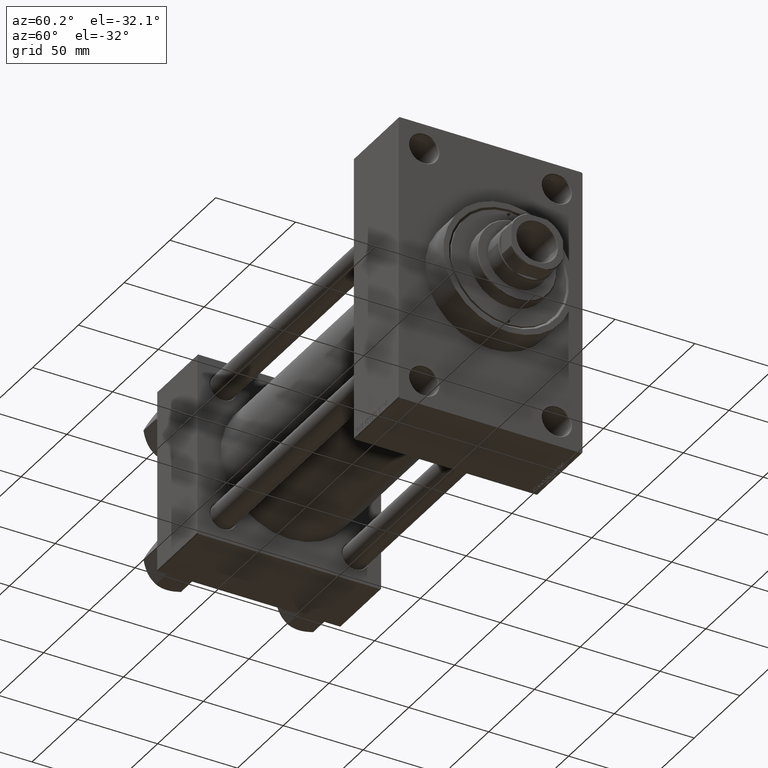
[diagram: clean part render]
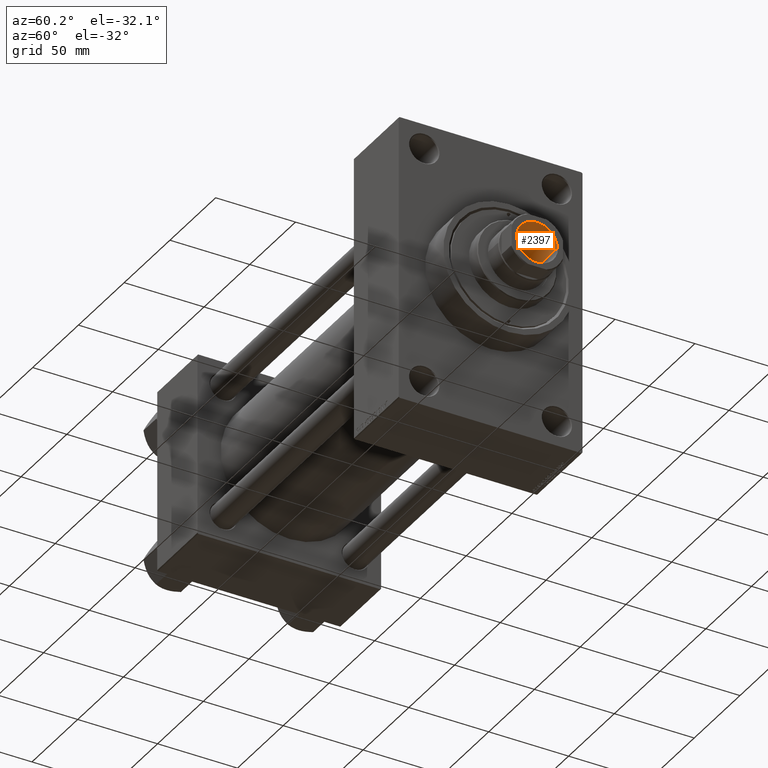
[diagram: same view with one face highlighted and labeled with its STEP entity id]
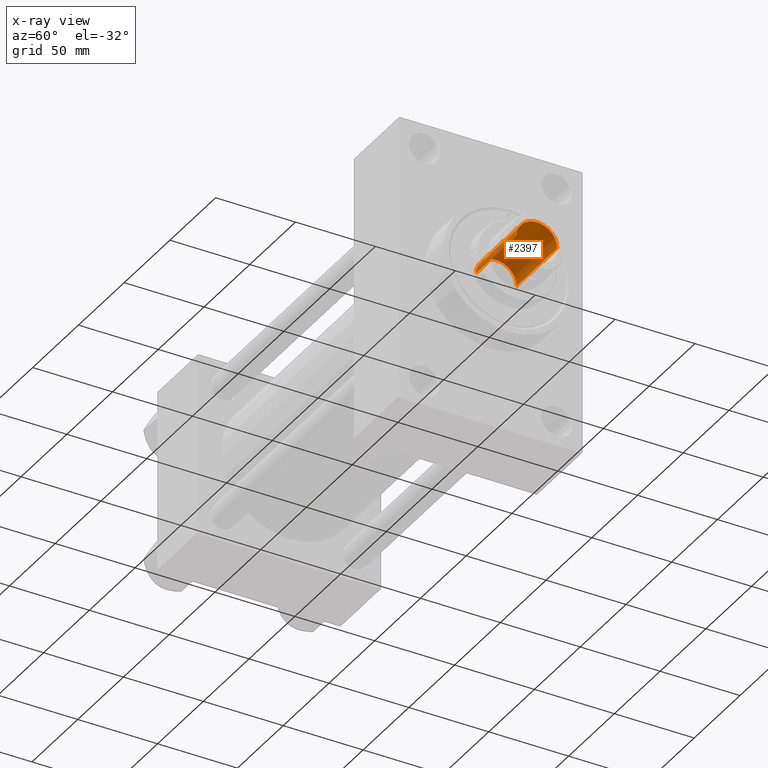
[diagram: x-ray of the same camera — body ghosted, the highlighted face saturated]
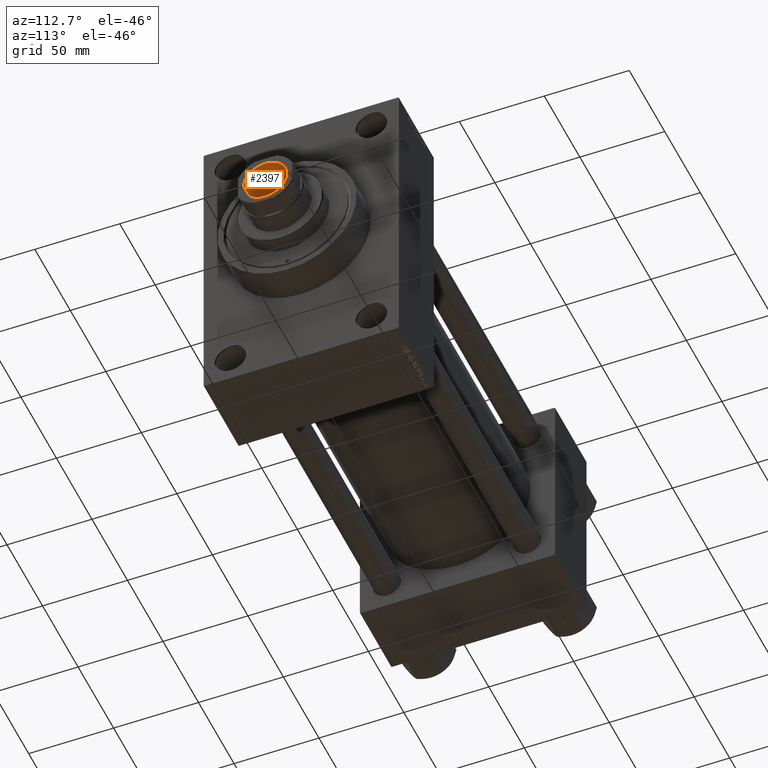
[diagram: same view with one face highlighted and labeled with its STEP entity id]
A machine part, auxiliary view. The second image highlights one B-rep face of the part: STEP entity #2397.
The next image is the same camera in x-ray: the body ghosted, the highlighted face saturated — about 0% of this face is hidden behind the body in this view.
A second angle (auxiliary view) of the same face is appended — the face is thin or edge-on in the first view.
In plain terms, the highlighted cylindrical surface (edge-blend (fillet) strip) has radius 12.75 mm, axis along (1, 0, 0).
Its self-contained STEP definition (entity closure, byte-faithful):
#827 = AXIS2_PLACEMENT_3D ( 'NONE', #25919, #15038, #39987 ) ;
#1538 = VERTEX_POINT ( 'NONE', #44597 ) ;
#2185 = CARTESIAN_POINT ( 'NONE',  ( 0.000000000000000000, 0.000000000000000000, 270.7000000000000455 ) ) ;
#2397 = ADVANCED_FACE ( 'NONE', ( #32470 ), #18174, .F. ) ;
#6410 = CARTESIAN_POINT ( 'NONE',  ( 12.74999999999998934, 0.000000000000000000, 226.0000000000000284 ) ) ;
#6744 = ORIENTED_EDGE ( 'NONE', *, *, #9566, .T. ) ;
#9566 = EDGE_CURVE ( 'NONE', #46591, #1538, #17972, .T. ) ;
#9800 = EDGE_CURVE ( 'NONE', #36148, #39683, #12181, .T. ) ;
#9852 = AXIS2_PLACEMENT_3D ( 'NONE', #44623, #29595, #14588 ) ;
#12181 = LINE ( 'NONE', #42193, #14848 ) ;
#14588 = DIRECTION ( 'NONE',  ( 1.000000000000000000, 0.000000000000000000, 0.000000000000000000 ) ) ;
#14848 = VECTOR ( 'NONE', #23522, 1000.000000000000000 ) ;
#15038 = DIRECTION ( 'NONE',  ( -0.000000000000000000, -0.000000000000000000, 1.000000000000000000 ) ) ;
#15616 = VECTOR ( 'NONE', #20667, 1000.000000000000000 ) ;
#16930 = DIRECTION ( 'NONE',  ( 0.000000000000000000, 0.000000000000000000, 1.000000000000000000 ) ) ;
#17563 = CARTESIAN_POINT ( 'NONE',  ( -12.74999999999998934, 1.561424668912873928E-15, 226.0000000000000284 ) ) ;
#17972 = LINE ( 'NONE', #32762, #15616 ) ;
#18174 = CYLINDRICAL_SURFACE ( 'NONE', #827, 12.74999999999999112 ) ;
#20667 = DIRECTION ( 'NONE',  ( -0.000000000000000000, -0.000000000000000000, 1.000000000000000000 ) ) ;
#23211 = CIRCLE ( 'NONE', #30967, 12.74999999999999112 ) ;
#23522 = DIRECTION ( 'NONE',  ( -0.000000000000000000, -0.000000000000000000, 1.000000000000000000 ) ) ;
#24524 = EDGE_CURVE ( 'NONE', #1538, #39683, #23211, .T. ) ;
#25919 = CARTESIAN_POINT ( 'NONE',  ( 0.000000000000000000, 0.000000000000000000, 271.0000000000000000 ) ) ;
#28116 = ORIENTED_EDGE ( 'NONE', *, *, #9800, .F. ) ;
#29595 = DIRECTION ( 'NONE',  ( -0.000000000000000000, -0.000000000000000000, 1.000000000000000000 ) ) ;
#30967 = AXIS2_PLACEMENT_3D ( 'NONE', #2185, #16930, #31704 ) ;
#31704 = DIRECTION ( 'NONE',  ( 1.000000000000000000, 0.000000000000000000, 0.000000000000000000 ) ) ;
#32064 = ORIENTED_EDGE ( 'NONE', *, *, #43249, .F. ) ;
#32470 = FACE_OUTER_BOUND ( 'NONE', #45696, .T. ) ;
#32762 = CARTESIAN_POINT ( 'NONE',  ( -12.74999999999999112, 1.561424668912874125E-15, 271.0000000000000000 ) ) ;
#36061 = CARTESIAN_POINT ( 'NONE',  ( 12.74999999999999112, 0.000000000000000000, 270.7000000000000455 ) ) ;
#36118 = CIRCLE ( 'NONE', #9852, 12.74999999999998934 ) ;
#36148 = VERTEX_POINT ( 'NONE', #6410 ) ;
#39683 = VERTEX_POINT ( 'NONE', #36061 ) ;
#39987 = DIRECTION ( 'NONE',  ( 1.000000000000000000, 0.000000000000000000, 0.000000000000000000 ) ) ;
#42193 = CARTESIAN_POINT ( 'NONE',  ( 12.74999999999999112, 0.000000000000000000, 271.0000000000000000 ) ) ;
#43249 = EDGE_CURVE ( 'NONE', #46591, #36148, #36118, .T. ) ;
#44597 = CARTESIAN_POINT ( 'NONE',  ( -12.74999999999999112, 1.561424668912874125E-15, 270.7000000000000455 ) ) ;
#44623 = CARTESIAN_POINT ( 'NONE',  ( 0.000000000000000000, 0.000000000000000000, 226.0000000000000284 ) ) ;
#45696 = EDGE_LOOP ( 'NONE', ( #32064, #6744, #46308, #28116 ) ) ;
#46308 = ORIENTED_EDGE ( 'NONE', *, *, #24524, .T. ) ;
#46591 = VERTEX_POINT ( 'NONE', #17563 ) ;